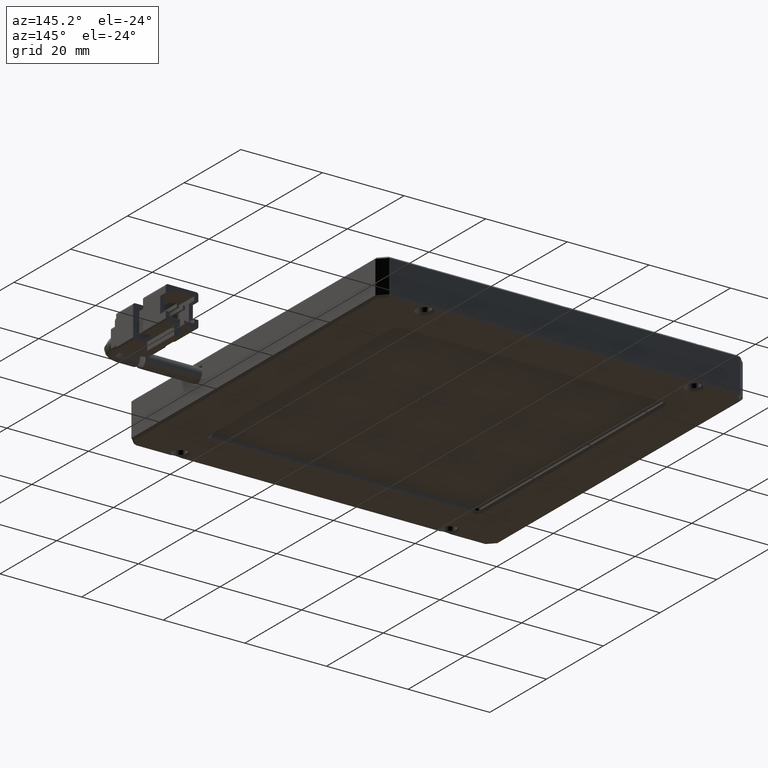
[diagram: clean part render]
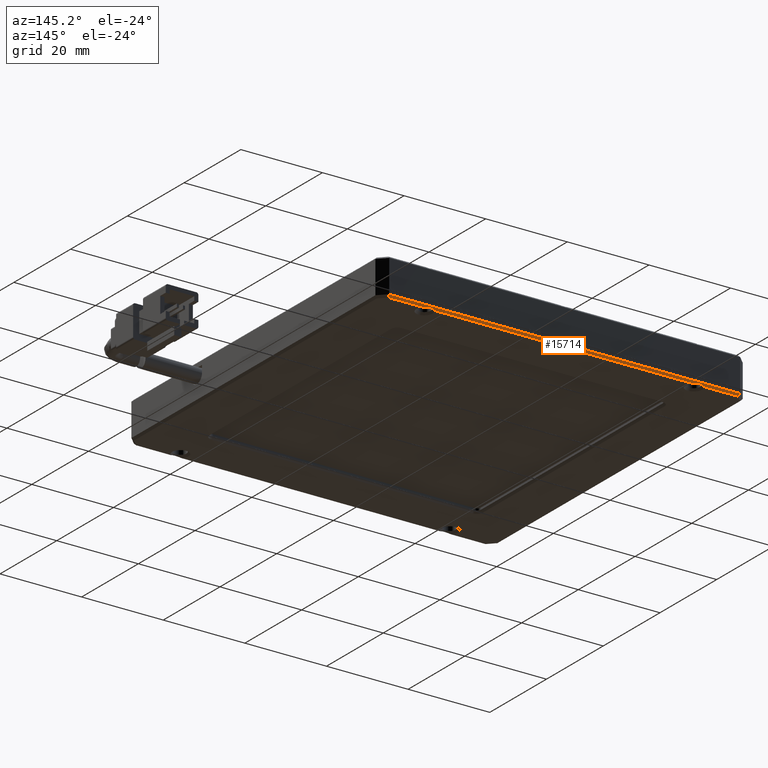
[diagram: same view with one face highlighted and labeled with its STEP entity id]
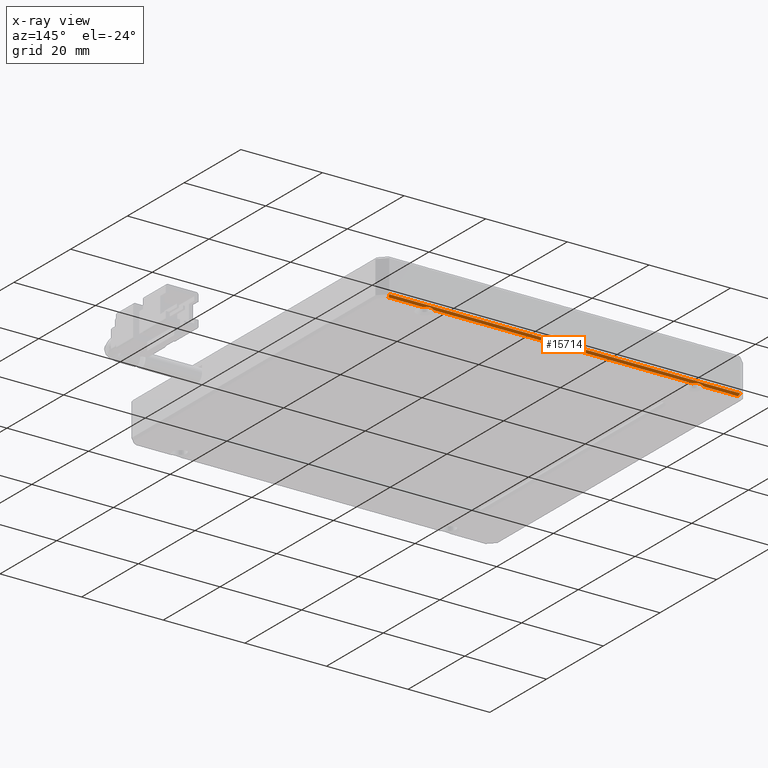
[diagram: x-ray of the same camera — body ghosted, the highlighted face saturated]
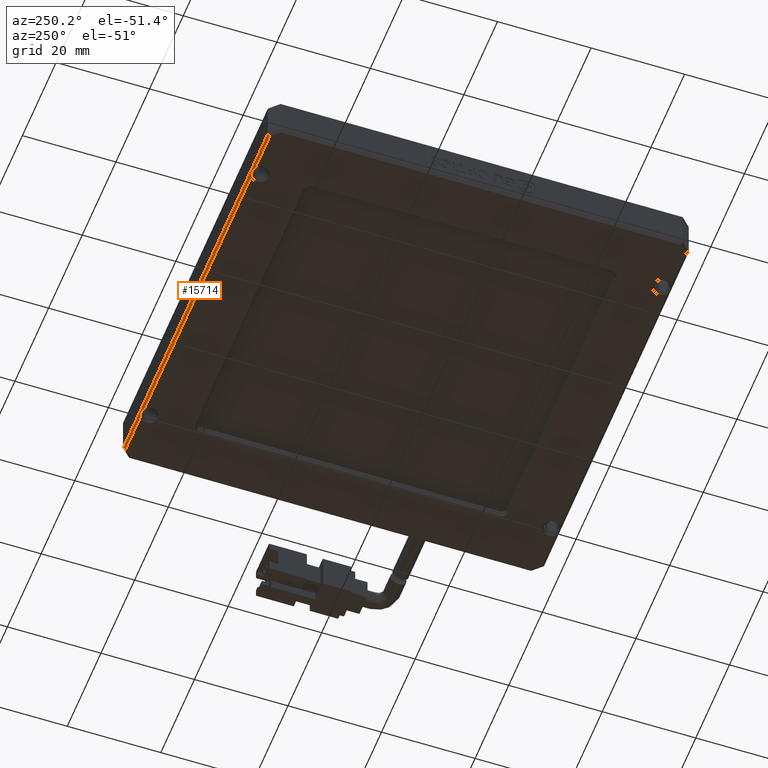
[diagram: same view with one face highlighted and labeled with its STEP entity id]
A machine part, auxiliary view. The second image highlights one B-rep face of the part: STEP entity #15714.
The next image is the same camera in x-ray: the body ghosted, the highlighted face saturated — about 0% of this face is hidden behind the body in this view.
A second angle (auxiliary view) of the same face is appended — the face is thin or edge-on in the first view.
In plain terms, the highlighted planar face has unit normal (0, 0.7071, -0.7071).
Its self-contained STEP definition (entity closure, byte-faithful):
#233 = VECTOR ( 'NONE', #12162, 999.9999999999998900 ) ;
#257 = EDGE_CURVE ( 'NONE', #8458, #16584, #568, .T. ) ;
#367 = EDGE_CURVE ( 'NONE', #17967, #11564, #8606, .T. ) ;
#431 = CARTESIAN_POINT ( 'NONE',  ( -74.87215247807269200, 72.43999999999999800, -3.000000000000000000 ) ) ;
#568 = LINE ( 'NONE', #431, #581 ) ;
#581 = VECTOR ( 'NONE', #17115, 1000.000000000000100 ) ;
#591 = CARTESIAN_POINT ( 'NONE',  ( 2.243616396213607500, 72.43999999999999800, -3.000000000000000000 ) ) ;
#613 = DIRECTION ( 'NONE',  ( 1.000000000000000000, -0.0000000000000000000, 0.0000000000000000000 ) ) ;
#1087 = ORIENTED_EDGE ( 'NONE', *, *, #11559, .T. ) ;
#1322 = CARTESIAN_POINT ( 'NONE',  ( -75.07925925925923100, 72.93999999999999800, -2.500000000000000400 ) ) ;
#1641 = CARTESIAN_POINT ( 'NONE',  ( -65.52021781110332200, 72.77333333333335500, -2.666666666666651400 ) ) ;
#1732 = CARTESIAN_POINT ( 'NONE',  ( 1.361699292584867000, 72.77333333333334100, -2.666666666666661200 ) ) ;
#1804 = CARTESIAN_POINT ( 'NONE',  ( 0.4797821888966511400, 72.77333333333334100, -2.666666666666661200 ) ) ;
#1863 = CARTESIAN_POINT ( 'NONE',  ( 2.243616396213607500, 72.43999999999999800, -3.000000000000000000 ) ) ;
#1884 = CARTESIAN_POINT ( 'NONE',  ( -77.07925925925924600, 72.93999999999999800, -2.499999999999999600 ) ) ;
#1977 = CARTESIAN_POINT ( 'NONE',  ( -0.4021349147320801800, 72.43999999999999800, -3.000000000000000000 ) ) ;
#2492 = ORIENTED_EDGE ( 'NONE', *, *, #10026, .F. ) ;
#2502 = CARTESIAN_POINT ( 'NONE',  ( 10.71363395955418700, 72.43999999999998400, -3.000000000000007100 ) ) ;
#2554 = ORIENTED_EDGE ( 'NONE', *, *, #257, .T. ) ;
#2959 = VECTOR ( 'NONE', #613, 1000.000000000000000 ) ;
#3060 = FACE_OUTER_BOUND ( 'NONE', #6717, .T. ) ;
#3285 = DIRECTION ( 'NONE',  ( 0.0000000000000000000, 0.7071067811865474600, 0.7071067811865474600 ) ) ;
#3713 = ORIENTED_EDGE ( 'NONE', *, *, #5717, .F. ) ;
#4429 = CARTESIAN_POINT ( 'NONE',  ( -63.75638360376304100, 72.43999999999999800, -3.000000000000000000 ) ) ;
#4824 = CARTESIAN_POINT ( 'NONE',  ( -66.40213491475545000, 72.43999999999999800, -3.000000000000000000 ) ) ;
#5398 = VERTEX_POINT ( 'NONE', #8467 ) ;
#5717 = EDGE_CURVE ( 'NONE', #17967, #9922, #5767, .T. ) ;
#5767 = LINE ( 'NONE', #11939, #9428 ) ;
#6320 = AXIS2_PLACEMENT_3D ( 'NONE', #1884, #11616, #3285 ) ;
#6505 = EDGE_CURVE ( 'NONE', #8970, #10801, #7229, .T. ) ;
#6717 = EDGE_LOOP ( 'NONE', ( #11513, #2492, #9969, #17706, #2554, #1087, #16513, #3713 ) ) ;
#6850 = CARTESIAN_POINT ( 'NONE',  ( -77.07925925925924600, 72.93999999999999800, -2.499999999999999600 ) ) ;
#7068 = CARTESIAN_POINT ( 'NONE',  ( -74.87215247807269200, 72.43999999999998400, -3.000000000000000000 ) ) ;
#7229 = B_SPLINE_CURVE_WITH_KNOTS ( 'NONE', 3,
 ( #4429, #9959, #1641, #14163 ),
 .UNSPECIFIED., .F., .F.,
 ( 4, 4 ),
 ( 0.0000000000000000000, 1.000000000000000000 ),
 .UNSPECIFIED. ) ;
#7231 = EDGE_CURVE ( 'NONE', #8458, #10801, #8012, .T. ) ;
#7492 = CARTESIAN_POINT ( 'NONE',  ( -63.75638360376304100, 72.43999999999999800, -3.000000000000000000 ) ) ;
#7781 = CARTESIAN_POINT ( 'NONE',  ( -77.07925925925924600, 72.43999999999999800, -3.000000000000000000 ) ) ;
#8012 = LINE ( 'NONE', #7781, #15448 ) ;
#8229 = DIRECTION ( 'NONE',  ( 1.000000000000000000, -0.0000000000000000000, 0.0000000000000000000 ) ) ;
#8458 = VERTEX_POINT ( 'NONE', #7068 ) ;
#8467 = CARTESIAN_POINT ( 'NONE',  ( 10.92074074074073100, 72.93999999999999800, -2.500000000000003100 ) ) ;
#8498 = LINE ( 'NONE', #6850, #11785 ) ;
#8606 = B_SPLINE_CURVE_WITH_KNOTS ( 'NONE', 3,
 ( #1863, #1732, #1804, #1977 ),
 .UNSPECIFIED., .F., .F.,
 ( 4, 4 ),
 ( 0.0000000000000000000, 1.000000000000000000 ),
 .UNSPECIFIED. ) ;
#8914 = CARTESIAN_POINT ( 'NONE',  ( -77.07925925925924600, 72.43999999999999800, -3.000000000000000000 ) ) ;
#8970 = VERTEX_POINT ( 'NONE', #7492 ) ;
#9428 = VECTOR ( 'NONE', #17674, 1000.000000000000000 ) ;
#9922 = VERTEX_POINT ( 'NONE', #11442 ) ;
#9959 = CARTESIAN_POINT ( 'NONE',  ( -64.63830070741511200, 72.77333333333335500, -2.666666666666651400 ) ) ;
#9969 = ORIENTED_EDGE ( 'NONE', *, *, #6505, .T. ) ;
#10026 = EDGE_CURVE ( 'NONE', #8970, #11564, #13569, .T. ) ;
#10149 = PLANE ( 'NONE',  #6320 ) ;
#10801 = VERTEX_POINT ( 'NONE', #4824 ) ;
#11337 = LINE ( 'NONE', #2502, #233 ) ;
#11442 = CARTESIAN_POINT ( 'NONE',  ( 10.71363395955419900, 72.43999999999998400, -2.999999999999996000 ) ) ;
#11513 = ORIENTED_EDGE ( 'NONE', *, *, #367, .T. ) ;
#11559 = EDGE_CURVE ( 'NONE', #16584, #5398, #8498, .T. ) ;
#11564 = VERTEX_POINT ( 'NONE', #16616 ) ;
#11616 = DIRECTION ( 'NONE',  ( 0.0000000000000000000, 0.7071067811865475700, -0.7071067811865475700 ) ) ;
#11785 = VECTOR ( 'NONE', #8229, 1000.000000000000000 ) ;
#11939 = CARTESIAN_POINT ( 'NONE',  ( -77.07925925925924600, 72.43999999999999800, -3.000000000000000000 ) ) ;
#12162 = DIRECTION ( 'NONE',  ( 0.2810846377148155100, 0.6785983445458456700, 0.6785983445458503300 ) ) ;
#12231 = EDGE_CURVE ( 'NONE', #9922, #5398, #11337, .T. ) ;
#13569 = LINE ( 'NONE', #8914, #2959 ) ;
#14163 = CARTESIAN_POINT ( 'NONE',  ( -66.40213491475545000, 72.43999999999999800, -3.000000000000000000 ) ) ;
#15448 = VECTOR ( 'NONE', #17567, 1000.000000000000000 ) ;
#15714 = ADVANCED_FACE ( 'NONE', ( #3060 ), #10149, .T. ) ;
#16513 = ORIENTED_EDGE ( 'NONE', *, *, #12231, .F. ) ;
#16584 = VERTEX_POINT ( 'NONE', #1322 ) ;
#16616 = CARTESIAN_POINT ( 'NONE',  ( -0.4021349147320801800, 72.43999999999999800, -3.000000000000000000 ) ) ;
#17115 = DIRECTION ( 'NONE',  ( -0.2810846377148163400, 0.6785983445458477800, 0.6785983445458477800 ) ) ;
#17567 = DIRECTION ( 'NONE',  ( 1.000000000000000000, -0.0000000000000000000, 0.0000000000000000000 ) ) ;
#17674 = DIRECTION ( 'NONE',  ( 1.000000000000000000, -0.0000000000000000000, 0.0000000000000000000 ) ) ;
#17706 = ORIENTED_EDGE ( 'NONE', *, *, #7231, .F. ) ;
#17967 = VERTEX_POINT ( 'NONE', #591 ) ;